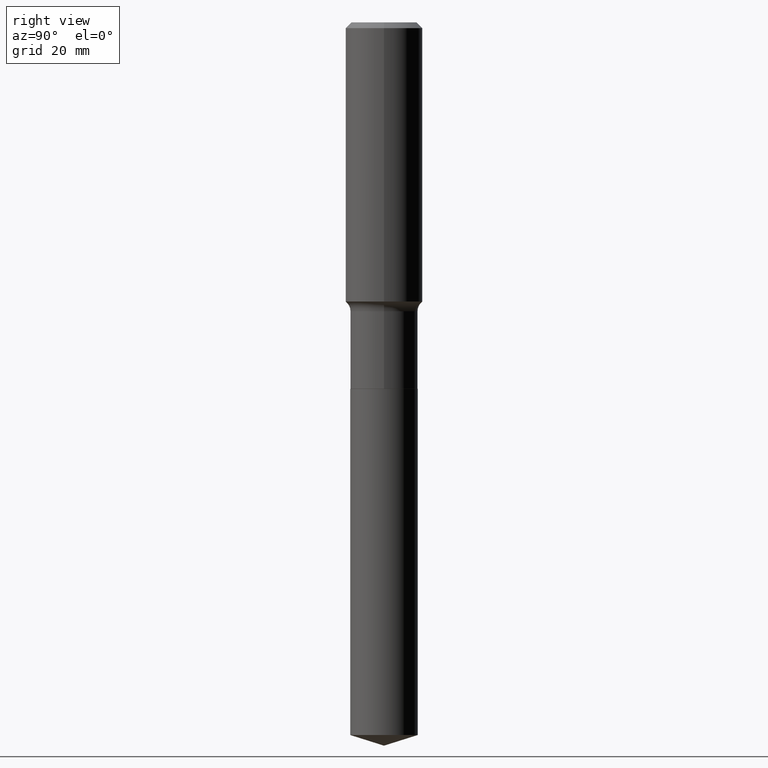
[diagram: clean part render]
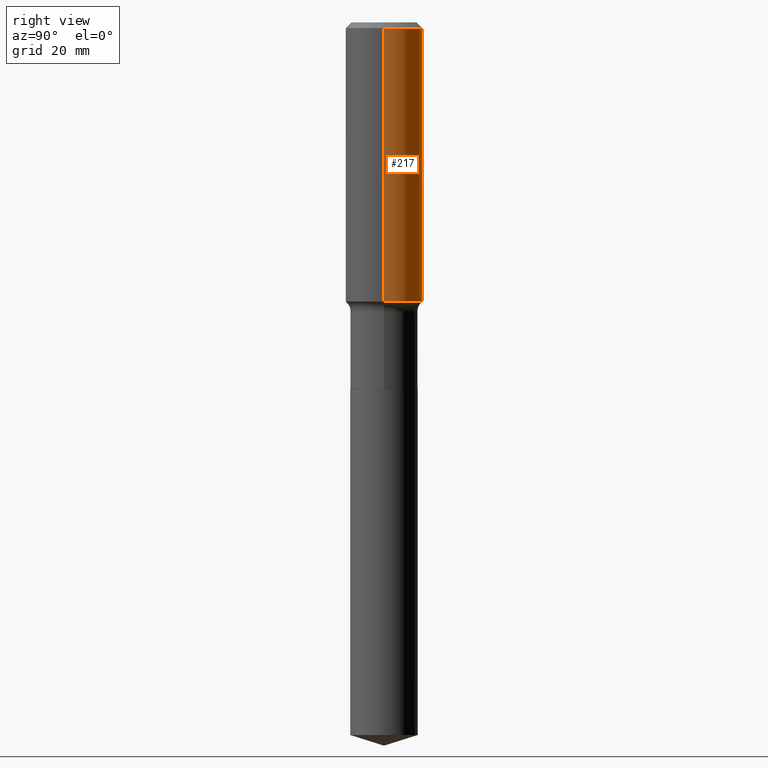
[diagram: same view with one face highlighted and labeled with its STEP entity id]
A machine part, right view. The second image highlights one B-rep face of the part: STEP entity #217.
In plain terms, the highlighted cylindrical surface (partial cylindrical patch) has radius 6.35 mm, axis along (-0, 0, 1).
Its self-contained STEP definition (entity closure, byte-faithful):
#14 = DIRECTION ( 'NONE',  ( -2.445468806185136597E-29, 3.491481338843145583E-15, 1.000000000000000000 ) ) ;
#31 = EDGE_CURVE ( 'NONE', #131, #381, #129, .T. ) ;
#93 = CARTESIAN_POINT ( 'NONE',  ( 0.000000000000000000, 0.000000000000000000, 0.000000000000000000 ) ) ;
#118 = ORIENTED_EDGE ( 'NONE', *, *, #447, .T. ) ;
#129 = CIRCLE ( 'NONE', #239, 0.2500000000000000000 ) ;
#131 = VERTEX_POINT ( 'NONE', #256 ) ;
#135 = VERTEX_POINT ( 'NONE', #439 ) ;
#158 = ORIENTED_EDGE ( 'NONE', *, *, #31, .F. ) ;
#188 = LINE ( 'NONE', #227, #482 ) ;
#197 = DIRECTION ( 'NONE',  ( 1.000000000000000000, -6.982962677686268288E-15, 0.000000000000000000 ) ) ;
#199 = CARTESIAN_POINT ( 'NONE',  ( 4.424984176209189832E-29, -6.317704661304503817E-15, -1.809462531281289310 ) ) ;
#217 = ADVANCED_FACE ( 'NONE', ( #284 ), #404, .T. ) ;
#223 = DIRECTION ( 'NONE',  ( -2.445468806185136877E-29, 3.491481338843145188E-15, 1.000000000000000000 ) ) ;
#225 = DIRECTION ( 'NONE',  ( -2.445468806185136877E-29, 3.491481338843145188E-15, 1.000000000000000000 ) ) ;
#227 = CARTESIAN_POINT ( 'NONE',  ( 0.2500000000000001110, -1.745740669421567467E-15, 1.219044193948984509E-29 ) ) ;
#239 = AXIS2_PLACEMENT_3D ( 'NONE', #478, #14, #278 ) ;
#240 = VECTOR ( 'NONE', #225, 39.37007874015748143 ) ;
#241 = VERTEX_POINT ( 'NONE', #257 ) ;
#256 = CARTESIAN_POINT ( 'NONE',  ( 0.2500000000000000000, -1.876671219628185362E-15, -0.03750000000000024841 ) ) ;
#257 = CARTESIAN_POINT ( 'NONE',  ( 0.2500000000000001665, -8.063445330726071283E-15, -1.809462531281289310 ) ) ;
#265 = LINE ( 'NONE', #372, #240 ) ;
#266 = EDGE_LOOP ( 'NONE', ( #118, #317, #158, #343 ) ) ;
#271 = AXIS2_PLACEMENT_3D ( 'NONE', #93, #444, #400 ) ;
#278 = DIRECTION ( 'NONE',  ( 1.000000000000000000, -6.982962677686266711E-15, 0.000000000000000000 ) ) ;
#281 = CIRCLE ( 'NONE', #451, 0.2500000000000002220 ) ;
#284 = FACE_OUTER_BOUND ( 'NONE', #266, .T. ) ;
#316 = DIRECTION ( 'NONE',  ( -2.445468806185136597E-29, 3.491481338843145583E-15, 1.000000000000000000 ) ) ;
#317 = ORIENTED_EDGE ( 'NONE', *, *, #402, .T. ) ;
#343 = ORIENTED_EDGE ( 'NONE', *, *, #345, .F. ) ;
#345 = EDGE_CURVE ( 'NONE', #241, #131, #188, .T. ) ;
#372 = CARTESIAN_POINT ( 'NONE',  ( -0.2500000000000001110, 1.776356839400251254E-15, -1.229733772563727006E-29 ) ) ;
#373 = CARTESIAN_POINT ( 'NONE',  ( -0.2500000000000000000, -1.447960766355309800E-15, -0.03750000000000024841 ) ) ;
#381 = VERTEX_POINT ( 'NONE', #373 ) ;
#400 = DIRECTION ( 'NONE',  ( 1.000000000000000000, -6.982962677686266711E-15, 4.876176775795935793E-29 ) ) ;
#402 = EDGE_CURVE ( 'NONE', #135, #381, #265, .T. ) ;
#404 = CYLINDRICAL_SURFACE ( 'NONE', #271, 0.2500000000000001110 ) ;
#439 = CARTESIAN_POINT ( 'NONE',  ( -0.2500000000000001665, -4.541347821904251775E-15, -1.809462531281289310 ) ) ;
#444 = DIRECTION ( 'NONE',  ( -2.445468806185136597E-29, 3.491481338843145583E-15, 1.000000000000000000 ) ) ;
#447 = EDGE_CURVE ( 'NONE', #241, #135, #281, .T. ) ;
#451 = AXIS2_PLACEMENT_3D ( 'NONE', #199, #316, #197 ) ;
#478 = CARTESIAN_POINT ( 'NONE',  ( 9.170508023194322494E-31, -1.309305502066188320E-16, -0.03750000000000024841 ) ) ;
#482 = VECTOR ( 'NONE', #223, 39.37007874015748143 ) ;